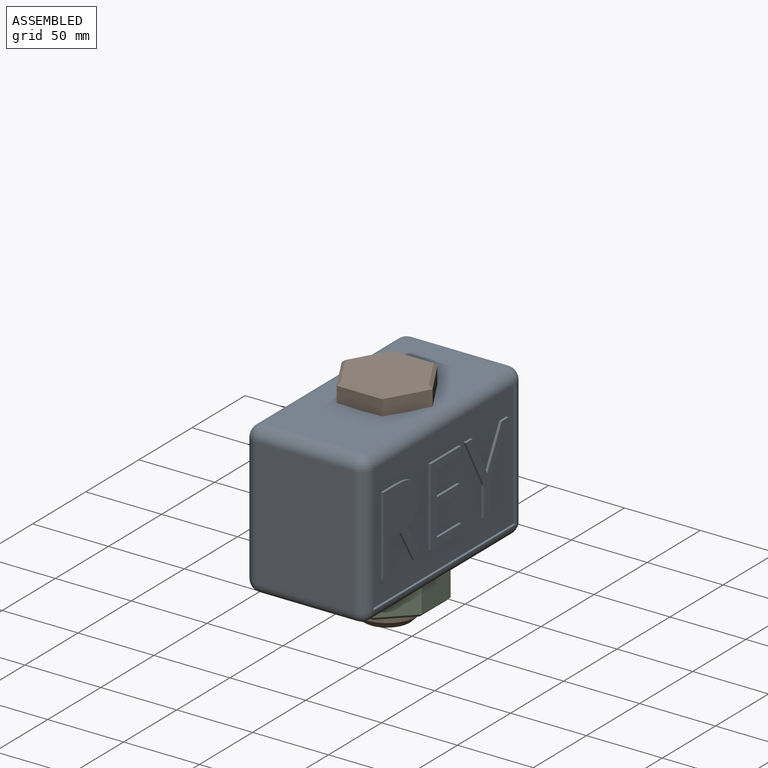
[diagram: assembled view]
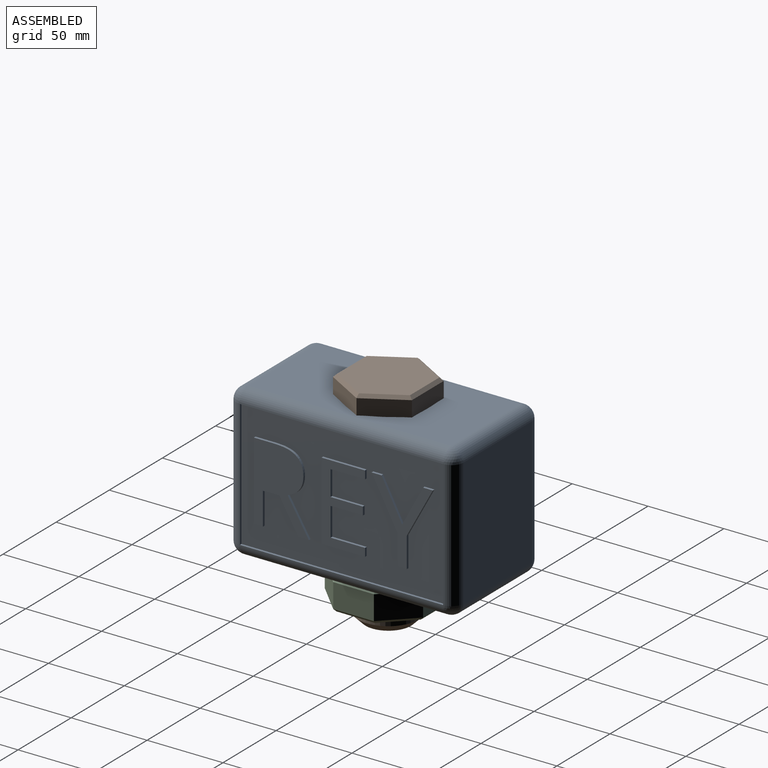
[diagram: assembled view, second angle]
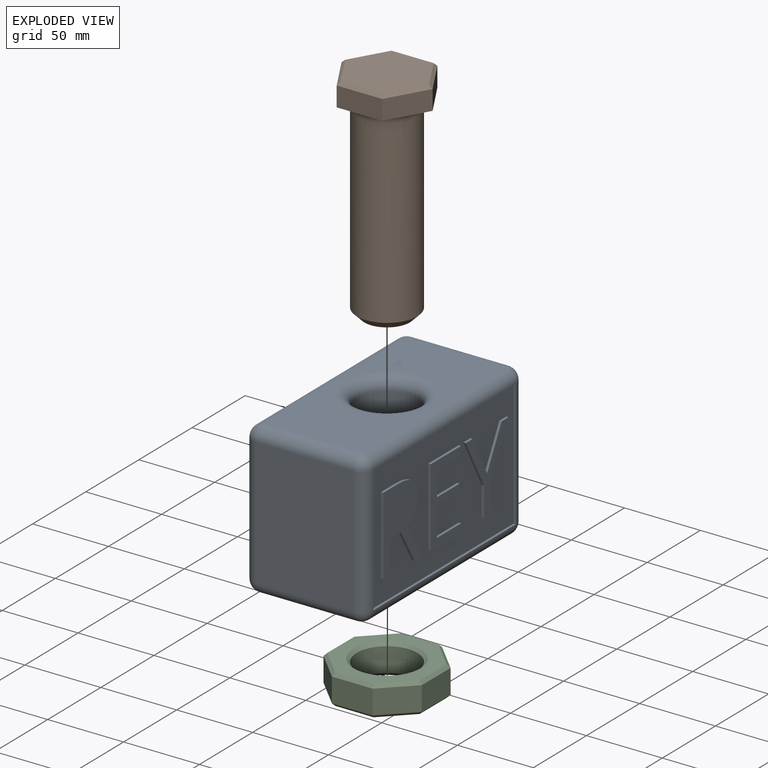
[diagram: exploded view]
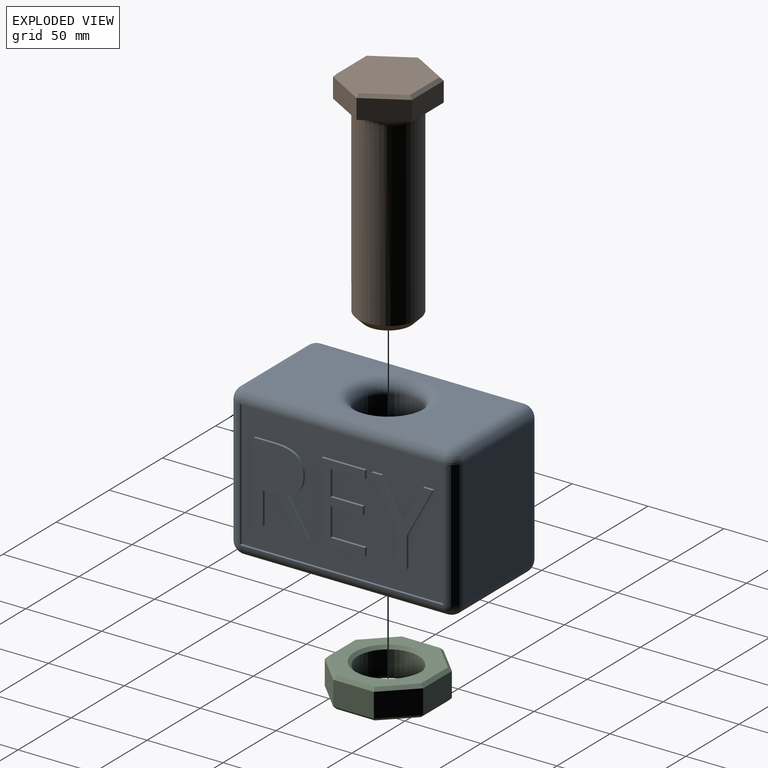
[diagram: exploded view, second angle]
ASSEMBLY  parts=3 mates=2
PART A: 68 faces, bbox 80x150x100 mm
  f0: plane 134x64mm, normal (0,0,1), area 6113mm2, adj f6,f13,f22,f23,f27
  f1: plane 134x84mm, normal (-1,0,0), area 11256mm2, adj f8,f12,f13,f14
  f2: plane 134x64mm, normal (0,0,-1), area 6113mm2, adj f7,f8,f11,f15,f16
  f3: plane 84x64mm, normal (0,-1,0), area 5376mm2, adj f11,f12,f21,f22
  f4: plane 84x64mm, normal (0,1,0), area 5376mm2, adj f14,f15,f23,f24
  f5: cylinder r=20mm len=84mm, axis (0,0,1), area 10555.8mm2, adj f6,f7
  f6: torus R=28mm, axis (0,0,-1), area 1808.7mm2, adj f0,f5
  f7: torus R=28mm, axis (0,0,-1), area 1808.7mm2, adj f2,f5
  f8: cylinder r=8mm len=134mm, axis (0,1,0), area 1683.9mm2, adj f1,f2,f9,f10
  f9: sphere r=8mm, area 100.5mm2, adj f8,f11,f12
  f10: sphere r=8mm, area 100.5mm2, adj f8,f14,f15
  f11: cylinder r=8mm len=64mm, axis (-1,0,0), area 804.2mm2, adj f2,f3,f9,f17
  f12: cylinder r=8mm len=84mm, axis (0,0,1), area 1055.6mm2, adj f1,f3,f9,f18
  f13: cylinder r=8mm len=134mm, axis (0,-1,0), area 1683.9mm2, adj f0,f1,f18,f19
  f14: cylinder r=8mm len=84mm, axis (0,0,-1), area 1055.6mm2, adj f1,f4,f10,f19
  f15: cylinder r=8mm len=64mm, axis (1,0,0), area 804.2mm2, adj f2,f4,f10,f20
  f16: cylinder r=8mm len=134mm, axis (0,-1,0), area 1683.9mm2, adj f2,f17,f20,f58
  f17: sphere r=8mm, area 100.5mm2, adj f11,f16,f21
  f18: sphere r=8mm, area 100.5mm2, adj f12,f13,f22
  f19: sphere r=8mm, area 100.5mm2, adj f13,f14,f23
  f20: sphere r=8mm, area 100.5mm2, adj f15,f16,f24
  f21: cylinder r=8mm len=84mm, axis (0,0,-1), area 1055.6mm2, adj f3,f17,f25,f57
  f22: cylinder r=8mm len=64mm, axis (1,0,0), area 804.2mm2, adj f0,f3,f18,f25
  f23: cylinder r=8mm len=64mm, axis (-1,0,0), area 804.2mm2, adj f0,f4,f19,f26
  f24: cylinder r=8mm len=84mm, axis (0,0,1), area 1055.6mm2, adj f4,f20,f26,f59
  f25: sphere r=8mm, area 100.5mm2, adj f21,f22,f27
  f26: sphere r=8mm, area 100.5mm2, adj f23,f24,f27
  f27: cylinder r=8mm len=134mm, axis (0,1,0), area 1683.9mm2, adj f0,f25,f26,f62
  f28: plane 6.54x1.6mm, normal (0,0,1), area 10.5mm2, adj f29,f63,f64,f67
  f29: plane 25.73x13.63mm, normal (0,0.88,0.47), area 46.6mm2, adj f28,f30,f64,f67
  f30: plane 25.73x13.72mm, normal (0,-0.88,0.47), area 46.7mm2, adj f29,f31,f64,f67
  f31: plane 6.48x1.6mm, normal (0,0,1), area 10.4mm2, adj f30,f32,f64,f67
  f32: plane 31.5x17.17mm, normal (0,0.88,-0.48), area 57.4mm2, adj f31,f33,f64,f67
  f33: plane 19.96x1.6mm, normal (0,1,0), area 31.9mm2, adj f32,f34,f64,f67
  f34: plane 6.05x1.6mm, normal (0,0,-1), area 9.7mm2, adj f33,f35,f64,f67
  f35: plane 19.67x1.6mm, normal (0,-1,0), area 31.5mm2, adj f34,f63,f64,f67
  f36: plane 22.7x1.6mm, normal (0,0,1), area 36.3mm2, adj f37,f60,f64,f66
  f37: plane 5.35x1.6mm, normal (0,1,0), area 8.6mm2, adj f36,f38,f64,f66
  f38: plane 28.68x1.6mm, normal (0,0,-1), area 45.9mm2, adj f37,f39,f64,f66
  f39: plane 51.45x1.6mm, normal (0,-1,0), area 82.3mm2, adj f38,f40,f64,f66
  f40: plane 28.68x1.6mm, normal (0,0,1), area 45.9mm2, adj f39,f41,f64,f66
  f41: plane 5.32x1.6mm, normal (0,1,0), area 8.5mm2, adj f40,f42,f64,f66
  f42: plane 22.7x1.6mm, normal (0,0,-1), area 36.3mm2, adj f41,f43,f64,f66
  f43: plane 16.58x1.6mm, normal (0,1,0), area 26.5mm2, adj f42,f44,f64,f66
  f44: plane 21.33x1.6mm, normal (0,0,1), area 34.1mm2, adj f43,f45,f64,f66
  f45: plane 5.28x1.6mm, normal (0,1,0), area 8.5mm2, adj f44,f46,f64,f66
  f46: plane 21.33x1.6mm, normal (0,0,-1), area 34.1mm2, adj f45,f60,f64,f66
  f47: plane 21.4x12.46mm, normal (0,-0.86,-0.5), area 39.6mm2, adj f48,f61,f64,f65
  f48: plane 10.74x1.6mm, normal (0,0,-1), area 17.2mm2, adj f47,f49,f64,f65
  f49: plane 21.4x1.6mm, normal (0,1,0), area 34.2mm2, adj f48,f50,f64,f65
  f50: plane 5.98x1.6mm, normal (0,0,-1), area 9.6mm2, adj f49,f51,f64,f65
  f51: plane 51.45x1.6mm, normal (0,-1,0), area 82.3mm2, adj f50,f52,f64,f65
  f52: plane 14.11x1.6mm, normal (0,0,1), area 22.6mm2, adj f51,f53,f64,f65
  f53: extruded ~13.99x3.63mm, area 23.6mm2, adj f52,f54,f64,f65
  f54: extruded ~10.91x4.52mm, area 19.6mm2, adj f53,f55,f64,f65
  f55: extruded ~13.8x10.35mm, area 29.8mm2, adj f54,f56,f64,f65
  f56: plane 23.12x13.98mm, normal (0,0.86,0.52), area 43.2mm2, adj f55,f61,f64,f65
  f57: plane 84x1.6mm, normal (0,1,0), area 134.4mm2, adj f21,f58,f62,f64
  f58: plane 134x1.6mm, normal (0,0,1), area 214.4mm2, adj f16,f57,f59,f64
  f59: plane 84x1.6mm, normal (0,-1,0), area 134.4mm2, adj f24,f58,f62,f64
  f60: plane 18.93x1.6mm, normal (0,1,0), area 30.3mm2, adj f36,f46,f64,f66
  f61: plane 7.07x1.6mm, normal (0,0,-1), area 11.3mm2, adj f47,f56,f64,f65
  f62: plane 134x1.6mm, normal (0,0,-1), area 214.4mm2, adj f27,f57,f59,f64
  f63: plane 31.78x17.14mm, normal (0,-0.88,-0.47), area 57.8mm2, adj f28,f35,f64,f67
  f64: plane 134x84mm, normal (1,0,0), area 8933.7mm2, adj f28,f29,f30,f31,f32,f33,f34,f35
  f65: plane 51.45x36.25mm, normal (1,0,0), area 1157.6mm2, adj f47,f48,f49,f50,f51,f52,f53,f54
  f66: plane 51.45x28.68mm, normal (1,0,0), area 662.5mm2, adj f36,f37,f38,f39,f40,f41,f42,f43
  f67: plane 51.45x40.36mm, normal (1,0,0), area 502.2mm2, adj f28,f29,f30,f31,f32,f33,f34,f35
PART B: 34 faces, bbox 65.5x65.5x145 mm
  f0: plane 21x12.12mm, normal (0,0,-1), area 35.8mm2, adj f5,f10,f25
  f1: plane 21x12.13mm, normal (0,0,-1), area 35.8mm2, adj f5,f6,f21
  f2: plane 24.25x7mm, normal (0,0,-1), area 35.8mm2, adj f6,f7,f17
  f3: plane 21x12.12mm, normal (0,0,-1), area 35.8mm2, adj f7,f8,f18
  f4: plane 21x12.13mm, normal (0,0,-1), area 35.8mm2, adj f8,f9,f22
  f5: plane 30x13mm, normal (0,1,0), area 390mm2, adj f0,f1,f6,f10,f23,f33
  f6: plane 25.99x15mm, normal (-0.87,0.5,0), area 390mm2, adj f1,f2,f5,f7,f19,f31
  f7: plane 25.98x15.01mm, normal (-0.87,-0.5,0), area 390mm2, adj f2,f3,f6,f8,f16,f29
  f8: plane 30x13mm, normal (0,-1,0), area 390mm2, adj f3,f4,f7,f9,f20,f28
  f9: plane 25.99x15mm, normal (0.87,-0.5,0), area 390mm2, adj f4,f8,f10,f12,f24,f30
  f10: plane 25.98x15.01mm, normal (0.87,0.5,0), area 390mm2, adj f0,f5,f9,f12,f27,f32
  f11: plane 55.38x47.97mm, normal (0,0,1), area 1992.1mm2, adj f28,f29,f30,f31,f32,f33
  f12: plane 24.25x7mm, normal (0,0,-1), area 35.8mm2, adj f9,f10,f26
  f13: cylinder r=20mm len=119mm, axis (0,0,1), area 14954mm2, adj f15,f16,f17,f18,f19,f20,f21,f22
  f14: plane 30x30mm, normal (0,0,-1), area 706.9mm2, adj f15
  f15: cone r=15mm half-angle=45deg, axis (0,0,1), area 777.5mm2, adj f13,f14
  f16: bspline ~6.08x6mm, area 16.1mm2, adj f7,f13,f17,f18
  f17: torus R=26mm, axis (0,0,1), area 202.8mm2, adj f2,f13,f16,f19
  f18: torus R=26mm, axis (0,0,1), area 202.8mm2, adj f3,f13,f16,f20
  f19: bspline ~7.85x7.27mm, area 16.1mm2, adj f6,f13,f17,f21
  f20: bspline ~6.25x6.19mm, area 16.1mm2, adj f8,f13,f18,f22
  f21: torus R=26mm, axis (0,0,1), area 202.8mm2, adj f1,f13,f19,f23
  f22: torus R=26mm, axis (0,0,1), area 202.8mm2, adj f4,f13,f20,f24
  f23: bspline ~6.25x6.19mm, area 16.1mm2, adj f5,f13,f21,f25
  f24: bspline ~7.85x7.27mm, area 16.1mm2, adj f9,f13,f22,f26
  f25: torus R=26mm, axis (0,0,1), area 202.8mm2, adj f0,f13,f23,f27
  f26: torus R=26mm, axis (0,0,1), area 202.8mm2, adj f12,f13,f24,f27
  f27: bspline ~6.08x6mm, area 16.1mm2, adj f10,f13,f25,f26
  f28: plane 30x2.01mm, normal (0,-0.71,0.71), area 81.6mm2, adj f8,f11,f29,f30
  f29: plane 25.98x16.16mm, normal (-0.61,-0.35,0.71), area 81.6mm2, adj f7,f11,f28,f31
  f30: plane 25.99x16.15mm, normal (0.61,-0.35,0.71), area 81.6mm2, adj f9,f11,f28,f32
  f31: plane 25.99x16.15mm, normal (-0.61,0.35,0.71), area 81.6mm2, adj f6,f11,f29,f33
  f32: plane 25.98x16.16mm, normal (0.61,0.35,0.71), area 81.6mm2, adj f10,f11,f30,f33
  f33: plane 30x2.01mm, normal (0,0.71,0.71), area 81.6mm2, adj f5,f11,f31,f32
PART C: 29 faces, bbox 65.1x65.1x20 mm
  f0: plane 26.92x16mm, normal (0,1,0), area 430.8mm2, adj f1,f7,f19,f28
  f1: plane 19.13x18.95mm, normal (-0.7,0.71,0), area 430.8mm2, adj f0,f2,f17,f26
  f2: plane 26.92x16mm, normal (-1,0,0), area 430.8mm2, adj f1,f3,f15,f24
  f3: plane 19.13x18.95mm, normal (-0.71,-0.7,0), area 430.8mm2, adj f2,f4,f13,f22
  f4: plane 26.92x16mm, normal (0,-1,0), area 430.8mm2, adj f3,f5,f12,f21
  f5: plane 19.13x18.95mm, normal (0.7,-0.71,0), area 430.8mm2, adj f4,f6,f14,f23
  f6: plane 26.92x16mm, normal (1,0,0), area 430.8mm2, adj f5,f7,f16,f25
  f7: plane 19.13x18.95mm, normal (0.71,0.7,0), area 430.8mm2, adj f0,f6,f18,f27
  f8: plane 61.12x61.12mm, normal (0,0,1), area 1562mm2, adj f20,f21,f22,f23,f24,f25,f26,f27
  f9: plane 61.12x61.12mm, normal (0,0,-1), area 1562mm2, adj f11,f12,f13,f14,f15,f16,f17,f18
  f10: cylinder r=20mm len=40mm, axis (0,0,-1), area 2010.6mm2, adj f11,f20
  f11: cone r=20mm half-angle=45deg, axis (0,0,-1), area 373.2mm2, adj f9,f10
  f12: plane 26.92x2.13mm, normal (0,-0.71,-0.71), area 73.8mm2, adj f4,f9,f13,f14
  f13: plane 19.95x19.78mm, normal (-0.5,-0.5,-0.71), area 73.8mm2, adj f3,f9,f12,f15
  f14: plane 19.95x19.78mm, normal (0.5,-0.5,-0.71), area 73.8mm2, adj f5,f9,f12,f16
  f15: plane 26.92x2.13mm, normal (-0.71,0,-0.71), area 73.8mm2, adj f2,f9,f13,f17
  f16: plane 26.92x2.13mm, normal (0.71,0,-0.71), area 73.8mm2, adj f6,f9,f14,f18
  f17: plane 19.95x19.78mm, normal (-0.5,0.5,-0.71), area 73.8mm2, adj f1,f9,f15,f19
  f18: plane 19.95x19.78mm, normal (0.5,0.5,-0.71), area 73.8mm2, adj f7,f9,f16,f19
  f19: plane 26.92x2.13mm, normal (0,0.71,-0.71), area 73.8mm2, adj f0,f9,f17,f18
  f20: cone r=20mm half-angle=45deg, axis (0,0,1), area 373.2mm2, adj f8,f10
  f21: plane 26.92x2.13mm, normal (0,-0.71,0.71), area 73.8mm2, adj f4,f8,f22,f23
  f22: plane 19.95x19.78mm, normal (-0.5,-0.5,0.71), area 73.8mm2, adj f3,f8,f21,f24
  f23: plane 19.95x19.78mm, normal (0.5,-0.5,0.71), area 73.8mm2, adj f5,f8,f21,f25
  f24: plane 26.92x2.13mm, normal (-0.71,0,0.71), area 73.8mm2, adj f2,f8,f22,f26
  f25: plane 26.92x2.13mm, normal (0.71,0,0.71), area 73.8mm2, adj f6,f8,f23,f27
  f26: plane 19.95x19.78mm, normal (-0.5,0.5,0.71), area 73.8mm2, adj f1,f8,f24,f28
  f27: plane 19.95x19.78mm, normal (0.5,0.5,0.71), area 73.8mm2, adj f7,f8,f25,f28
  f28: plane 26.92x2.13mm, normal (0,0.71,0.71), area 73.8mm2, adj f0,f8,f26,f27
PLACE A t=(-15.9,0,24.1)mm
PLACE B t=(-15.9,-72.14,71.39)mm
PLACE C t=(-15.9,-72.14,-45.9)mm
MATE fastened B.f13 <-> A.f5  axis (0,0,1) through (-15.9,-72.14,66.1)mm
MATE fastened C.f10 <-> A.f5  axis (0,0,1) through (-15.9,-72.14,-25.9)mm
